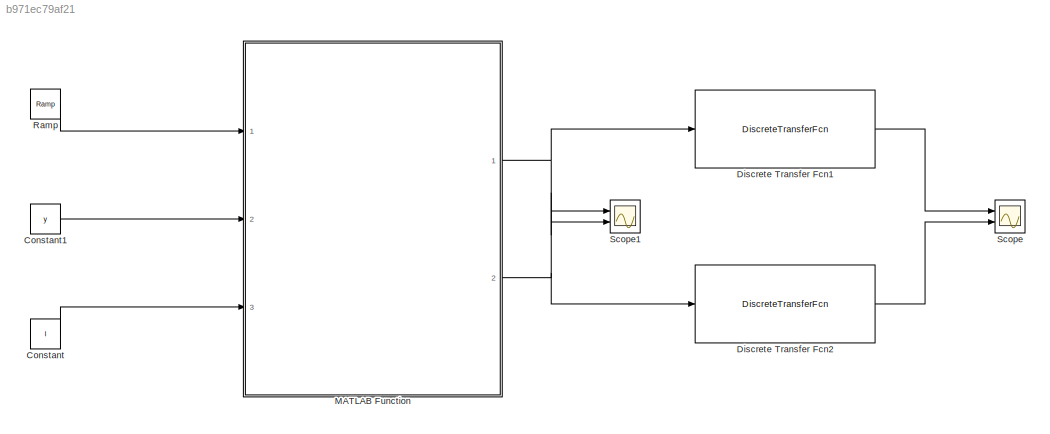
MODEL slx_b971ec79af21
KIND model
CONFIG AbsTol = auto
CONFIG EnableMultiTasking = off
CONFIG FixedStep = 0.01
CONFIG MaxStep = auto
CONFIG MinStep = auto
CONFIG RelTol = 1e-3
CONFIG SampleTimeConstraint = Unconstrained
CONFIG Solver = FixedStepAuto
CONFIG SolverName = FixedStepAuto
CONFIG StartTime = 0.0
CONFIG StopTime = 10.0
BLOCK [Constant] Constant
  Value = I
  VectorParams1D = off
BLOCK [Constant] Constant1
  Value = y
BLOCK [DiscreteTransferFcn] Discrete Transfer Fcn1
  Denominator = [1 -1.7162 0.7362]
  InputPortMap = u0
  NumCoefDataTypeStr = int16
  Numerator = [0.1319 0 -0.1319]
  OutDataTypeStr = int16
  Ports = [1, 1]
BLOCK [DiscreteTransferFcn] Discrete Transfer Fcn2
  Denominator = [1 -1.7162 0.7362]
  InputPortMap = u0
  NumCoefDataTypeStr = int16
  Numerator = [0.1319 0 -0.1319]
  OutDataTypeStr = int16
  Ports = [1, 1]
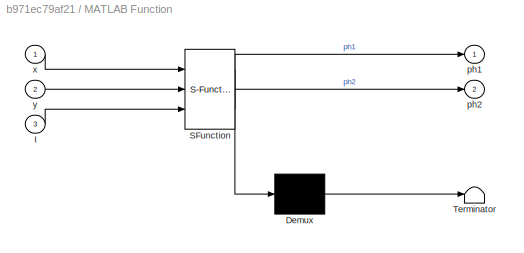
BLOCK [SubSystem] MATLAB Function
  ErrorFcn = Stateflow.Translate.translate
  PermitHierarchicalResolution = ExplicitOnly
  Ports = [3, 2]
  RequestExecContextInheritance = off
  SFBlockType = MATLAB Function
  TreatAsAtomicUnit = on
BLOCK [Demux] MATLAB Function/ Demux 
  Outputs = 1
  Ports = [1, 1]
BLOCK [S-Function] MATLAB Function/ SFunction 
  EnableBusSupport = on
  FunctionName = sf_sfun
  PortCounts = [3 3]
  Ports = [3, 3]
  SFcnIsStateOwnerBlock = off
  SFunctionDeploymentMode = off
  Tag = Stateflow S-Function 2
BLOCK [Terminator] MATLAB Function/ Terminator 
BLOCK [Inport] MATLAB Function/I
  Port = 3
BLOCK [Outport] MATLAB Function/ph1
BLOCK [Outport] MATLAB Function/ph2
  Port = 2
BLOCK [Inport] MATLAB Function/x
BLOCK [Inport] MATLAB Function/y
  Port = 2
BLOCK [Reference] Ramp  REF=simulink/Sources/Ramp
  Ports = [0, 1]
  SourceBlock = simulink/Sources/Ramp
  SourceProductBaseCode = SL
  SourceType = Ramp
BLOCK [Scope] Scope
  Floating = off
  NumInputPorts = 2
  Ports = [2]
  ScopeSpecificationString = Simulink.scopes.TimeScopeBlockCfg('CurrentConfiguration', extmgr.ConfigurationSet(extmgr.Configuration('Core','General UI',true),extmgr.Configuration('Core','Source UI',true),extmgr.Configuration('Sources','WiredSimulink',true),extmgr.Configuration('Visuals','Time Domain',true,'SerializedDisplays',{struct('MinYLimReal','-126.25362','MaxYLimReal','159.29419','YLabelReal','','MinYLimMag',' 0.00000',...<+1427ch>
BLOCK [Scope] Scope1
  Floating = off
  NumInputPorts = 2
  Ports = [2]
  ScopeSpecificationString = Simulink.scopes.TimeScopeBlockCfg('CurrentConfiguration', extmgr.ConfigurationSet(extmgr.Configuration('Core','General UI',true),extmgr.Configuration('Core','Source UI',true),extmgr.Configuration('Sources','WiredSimulink',true,'DataLoggingVariableName','ScopeData1'),extmgr.Configuration('Visuals','Time Domain',true,'SerializedDisplays',{struct('MinYLimReal','-31.875','MaxYLimReal','286.875','YLabe...<+1492ch>
LINE Constant1:1 -> MATLAB Function:2
LINE Constant:1 -> MATLAB Function:3
LINE Discrete Transfer Fcn1:1 -> Scope:1
LINE Discrete Transfer Fcn2:1 -> Scope:2
NET MATLAB Function:1 -> Discrete Transfer Fcn1:1, Scope1:1
NET MATLAB Function:2 -> Discrete Transfer Fcn2:1, Scope1:2
LINE Ramp:1 -> MATLAB Function:1
note: NET lines group one-source signal fan-out (src -> all destinations, sorted); 1:1 wires keep LINE
CHART MATLAB Function states=1 transitions=1
  STATE_LABEL 'eML_blk_kernel()'
  STATE_LABEL 'SCRIPT:\nfunction [ph1, ph2] = sortie_recepteurs(x, y, I)\n   delta_rho = 0.0663; %en radian\n  \n    deltaphi = 3.8;     %en degrée\n    deltarho = deltaphi;\n    \n    \n    abs_I = I(:,3); %on extraie les abscisses de début de chaque bande\n    \n\n    \n    A = matrice(delta_rho, 5E-3);         %on calcule la matrice A\n    theta_n=-rad2deg(atan2(y, I(:,3)-x)); %on calcule les angles\n    \n    \n    bordDroi...<+2620ch>'
CHART  states=0 transitions=0
